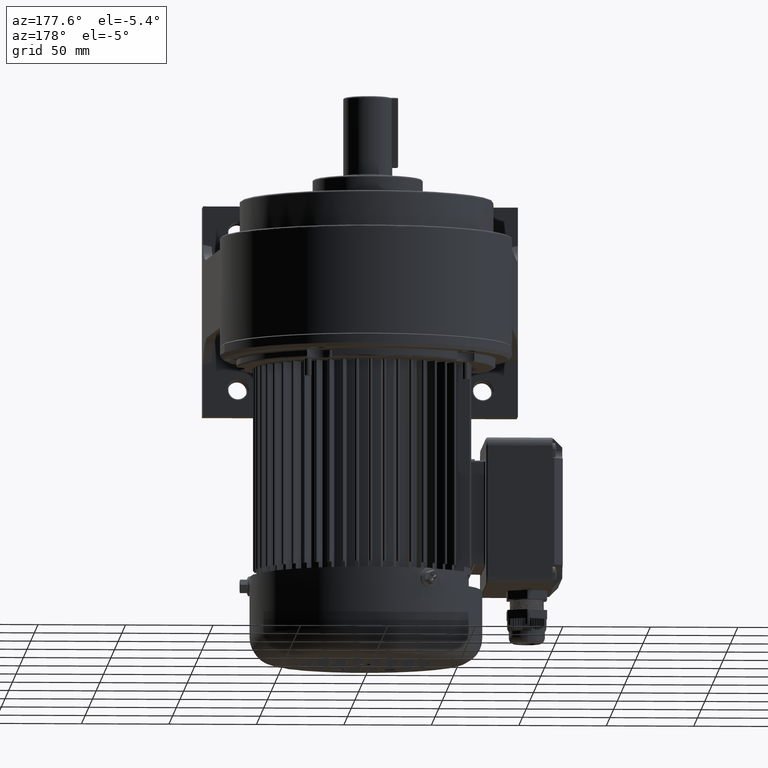
[diagram: clean part render]
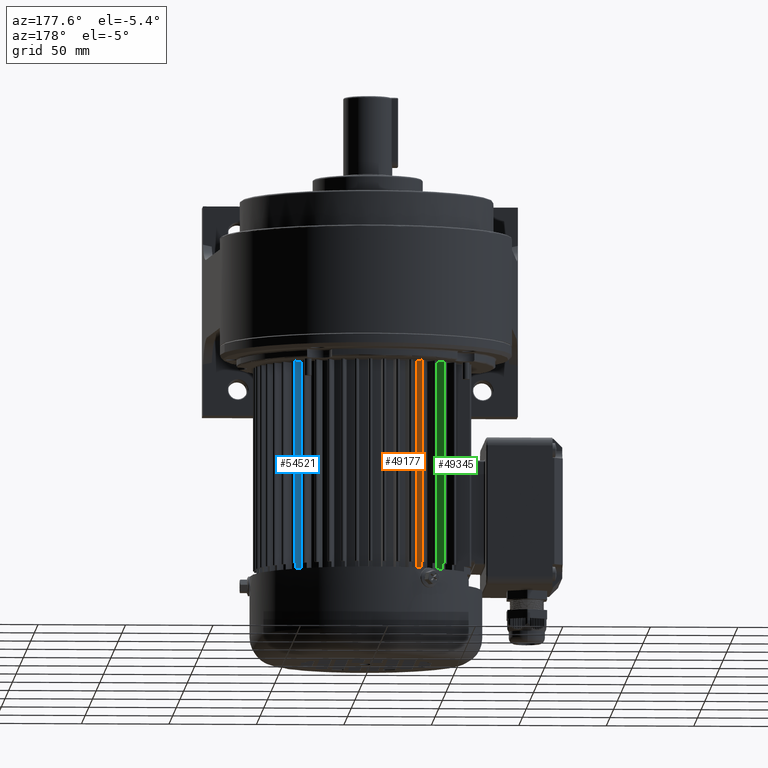
[diagram: same view with three faces highlighted in distinct colors, each labeled with its STEP entity id]
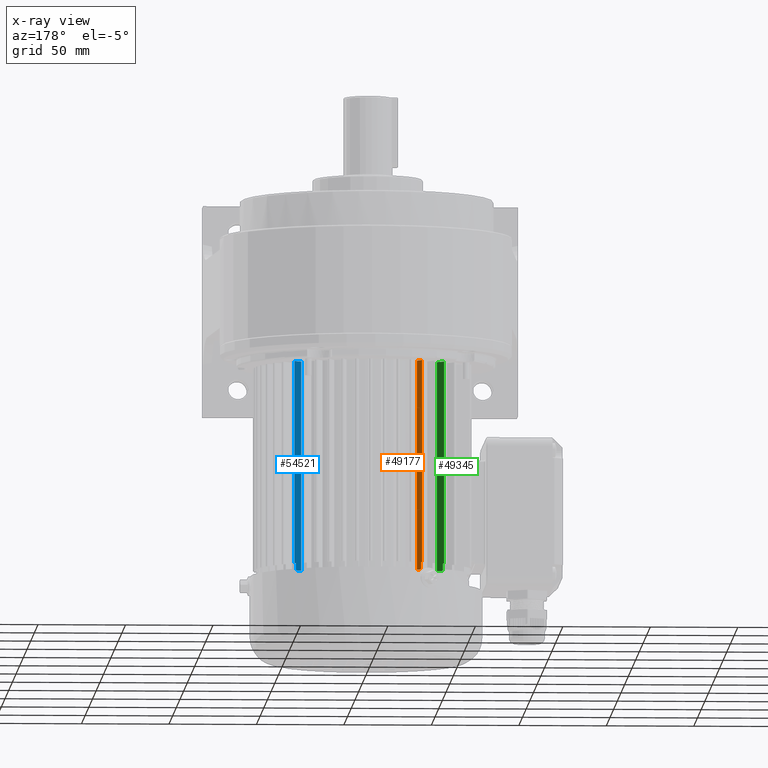
[diagram: x-ray of the same camera — body ghosted, the three highlighted faces saturated]
A machine part, auxiliary view with three faces highlighted in distinct colors.
The next image is the same camera in x-ray (body ghosted, the three faces saturated) — at least one of them is partly hidden behind the body in this view.
Their STEP definitions:

[orange] entity #49177 — the highlighted planar face has unit normal (-0.8763, -0.4818, -0).
#11721 = CARTESIAN_POINT ( 'NONE',  ( -26.91670536020936300, 120.0000000000000000, -51.03705489692441000 ) ) ;
#11722 = LINE ( 'NONE', #11721, #11777 ) ;
#11745 = LINE ( 'NONE', #11808, #11806 ) ;
#11748 = DIRECTION ( 'NONE',  ( -0.4817536741017096600, 0.0000000000000000000, -0.8763066800438666900 ) ) ;
#11749 = VECTOR ( 'NONE', #11748, 1000.000000000000000 ) ;
#11750 = CARTESIAN_POINT ( 'NONE',  ( -26.91670536020936300, 4.000000000000003600, -51.03705489692441000 ) ) ;
#11751 = AXIS2_PLACEMENT_3D ( 'NONE', #11767, #11810, #11809 ) ;
#11754 = PLANE ( 'NONE',  #11751 ) ;
#11755 = FACE_OUTER_BOUND ( 'NONE', #49133, .T. ) ;
#11763 = DIRECTION ( 'NONE',  ( -0.0000000000000000000, 1.000000000000000000, -0.0000000000000000000 ) ) ;
#11764 = VECTOR ( 'NONE', #11763, 1000.000000000000000 ) ;
#11765 = CARTESIAN_POINT ( 'NONE',  ( -29.22944367523074000, 4.000000000000000000, -55.24391027467654400 ) ) ;
#11767 = CARTESIAN_POINT ( 'NONE',  ( -26.91670536020936300, 120.0000000000000000, -51.03705489692441000 ) ) ;
#11768 = CARTESIAN_POINT ( 'NONE',  ( -29.22944367523074800, 4.000000000000000000, -55.24391027467655800 ) ) ;
#11770 = LINE ( 'NONE', #11765, #11764 ) ;
#11771 = LINE ( 'NONE', #11750, #11749 ) ;
#11775 = CARTESIAN_POINT ( 'NONE',  ( -29.71505162541472000, 4.000000000000003600, -56.12722785688723100 ) ) ;
#11776 = DIRECTION ( 'NONE',  ( -0.0000000000000000000, -1.000000000000000000, -0.0000000000000000000 ) ) ;
#11777 = VECTOR ( 'NONE', #11776, 1000.000000000000000 ) ;
#11806 = VECTOR ( 'NONE', #11807, 1000.000000000000000 ) ;
#11807 = DIRECTION ( 'NONE',  ( -0.0000000000000000000, -1.000000000000000000, -0.0000000000000000000 ) ) ;
#11808 = CARTESIAN_POINT ( 'NONE',  ( -29.71505162541472000, 120.0000000000000000, -56.12722785688723100 ) ) ;
#11809 = DIRECTION ( 'NONE',  ( 0.4817536741017096600, 0.0000000000000000000, 0.8763066800438666900 ) ) ;
#11810 = DIRECTION ( 'NONE',  ( -0.8763066800438666900, 0.0000000000000000000, 0.4817536741017096600 ) ) ;
#29536 = CARTESIAN_POINT ( 'NONE',  ( -29.71505162541472000, 120.0000000000000000, -56.12722785688723100 ) ) ;
#29629 = DIRECTION ( 'NONE',  ( -0.4817536741017096600, 0.0000000000000000000, -0.8763066800438666900 ) ) ;
#29630 = VECTOR ( 'NONE', #29629, 1000.000000000000000 ) ;
#29631 = CARTESIAN_POINT ( 'NONE',  ( -26.91670536020936300, 120.0000000000000000, -51.03705489692441000 ) ) ;
#29632 = LINE ( 'NONE', #29631, #29630 ) ;
#29661 = CARTESIAN_POINT ( 'NONE',  ( -26.91670536020936300, 120.0000000000000000, -51.03705489692441000 ) ) ;
#29924 = DIRECTION ( 'NONE',  ( -0.4817536741017096600, 0.0000000000000000000, -0.8763066800438666900 ) ) ;
#29925 = VECTOR ( 'NONE', #29924, 1000.000000000000000 ) ;
#29926 = CARTESIAN_POINT ( 'NONE',  ( -26.91670536020936300, 0.0000000000000000000, -51.03705489692441000 ) ) ;
#29929 = LINE ( 'NONE', #29926, #29925 ) ;
#29950 = CARTESIAN_POINT ( 'NONE',  ( -26.91670536020936300, 0.0000000000000000000, -51.03705489692441000 ) ) ;
#29964 = CARTESIAN_POINT ( 'NONE',  ( -29.22944367523074800, 0.0000000000000000000, -55.24391027467655800 ) ) ;
#34244 = VERTEX_POINT ( 'NONE', #29536 ) ;
#34310 = EDGE_CURVE ( 'NONE', #34324, #34244, #29632, .T. ) ;
#34324 = VERTEX_POINT ( 'NONE', #29661 ) ;
#34474 = EDGE_CURVE ( 'NONE', #34497, #34490, #29929, .T. ) ;
#34490 = VERTEX_POINT ( 'NONE', #29964 ) ;
#34497 = VERTEX_POINT ( 'NONE', #29950 ) ;
#49133 = EDGE_LOOP ( 'NONE', ( #49179, #49178, #49181, #49150, #49182, #49180 ) ) ;
#49150 = ORIENTED_EDGE ( 'NONE', *, *, #34310, .F. ) ;
#49160 = EDGE_CURVE ( 'NONE', #34324, #34497, #11722, .T. ) ;
#49163 = VERTEX_POINT ( 'NONE', #11775 ) ;
#49164 = EDGE_CURVE ( 'NONE', #34490, #49166, #11770, .T. ) ;
#49166 = VERTEX_POINT ( 'NONE', #11768 ) ;
#49175 = EDGE_CURVE ( 'NONE', #49166, #49163, #11771, .T. ) ;
#49177 = ADVANCED_FACE ( 'NONE', ( #11755 ), #11754, .F. ) ;
#49178 = ORIENTED_EDGE ( 'NONE', *, *, #49175, .T. ) ;
#49179 = ORIENTED_EDGE ( 'NONE', *, *, #49164, .T. ) ;
#49180 = ORIENTED_EDGE ( 'NONE', *, *, #34474, .T. ) ;
#49181 = ORIENTED_EDGE ( 'NONE', *, *, #49183, .F. ) ;
#49182 = ORIENTED_EDGE ( 'NONE', *, *, #49160, .T. ) ;
#49183 = EDGE_CURVE ( 'NONE', #34244, #49163, #11745, .T. ) ;

[blue] entity #54521 — the highlighted planar face has unit normal (0.729, -0.6845, -0).
#12537 = CARTESIAN_POINT ( 'NONE',  ( 42.04974876574094400, 4.000000000000000000, -46.23925419746807100 ) ) ;
#12672 = CARTESIAN_POINT ( 'NONE',  ( 38.76346698850220200, 120.0000000000000000, -42.73971954787841600 ) ) ;
#12703 = DIRECTION ( 'NONE',  ( 0.0000000000000000000, -1.000000000000000000, 0.0000000000000000000 ) ) ;
#12704 = VECTOR ( 'NONE', #12703, 1000.000000000000000 ) ;
#12705 = CARTESIAN_POINT ( 'NONE',  ( 42.04974876574093700, 4.000000000000000000, -46.23925419746806400 ) ) ;
#12707 = LINE ( 'NONE', #12705, #12704 ) ;
#12709 = DIRECTION ( 'NONE',  ( -0.0000000000000000000, -1.000000000000000000, -0.0000000000000000000 ) ) ;
#12710 = VECTOR ( 'NONE', #12709, 1000.000000000000000 ) ;
#12716 = LINE ( 'NONE', #12672, #12710 ) ;
#12738 = DIRECTION ( 'NONE',  ( -0.6845471059286835100, 0.0000000000000000000, 0.7289686274214164400 ) ) ;
#12739 = VECTOR ( 'NONE', #12738, 1000.000000000000000 ) ;
#12758 = CARTESIAN_POINT ( 'NONE',  ( 38.76346698850219500, 4.000000000000003600, -42.73971954787841600 ) ) ;
#12759 = LINE ( 'NONE', #12758, #12739 ) ;
#12777 = DIRECTION ( 'NONE',  ( 0.6845471059286835100, 0.0000000000000000000, -0.7289686274214164400 ) ) ;
#12778 = DIRECTION ( 'NONE',  ( 0.7289686274214164400, -0.0000000000000000000, 0.6845471059286835100 ) ) ;
#12783 = AXIS2_PLACEMENT_3D ( 'NONE', #12790, #12778, #12777 ) ;
#12790 = CARTESIAN_POINT ( 'NONE',  ( 38.76346698850219500, 120.0000000000000000, -42.73971954787841600 ) ) ;
#12791 = FACE_OUTER_BOUND ( 'NONE', #54386, .T. ) ;
#12792 = PLANE ( 'NONE',  #12783 ) ;
#18188 = VERTEX_POINT ( 'NONE', #25735 ) ;
#18190 = VERTEX_POINT ( 'NONE', #25785 ) ;
#18238 = EDGE_CURVE ( 'NONE', #18188, #18190, #25884, .T. ) ;
#18660 = VERTEX_POINT ( 'NONE', #26664 ) ;
#18680 = EDGE_CURVE ( 'NONE', #18188, #18660, #26685, .T. ) ;
#25735 = CARTESIAN_POINT ( 'NONE',  ( 42.73977259905004200, 120.0000000000000000, -46.97405494718857000 ) ) ;
#25785 = CARTESIAN_POINT ( 'NONE',  ( 42.73977259905004200, 4.000000000000003600, -46.97405494718857000 ) ) ;
#25881 = DIRECTION ( 'NONE',  ( -0.0000000000000000000, -1.000000000000000000, -0.0000000000000000000 ) ) ;
#25882 = VECTOR ( 'NONE', #25881, 1000.000000000000000 ) ;
#25883 = CARTESIAN_POINT ( 'NONE',  ( 42.73977259905004200, 120.0000000000000000, -46.97405494718857000 ) ) ;
#25884 = LINE ( 'NONE', #25883, #25882 ) ;
#26664 = CARTESIAN_POINT ( 'NONE',  ( 38.76346698850220200, 120.0000000000000000, -42.73971954787841600 ) ) ;
#26678 = DIRECTION ( 'NONE',  ( -0.6845471059286835100, -0.0000000000000000000, 0.7289686274214164400 ) ) ;
#26679 = VECTOR ( 'NONE', #26678, 1000.000000000000000 ) ;
#26685 = LINE ( 'NONE', #26687, #26679 ) ;
#26687 = CARTESIAN_POINT ( 'NONE',  ( 38.76346698850219500, 120.0000000000000000, -42.73971954787841600 ) ) ;
#29127 = CARTESIAN_POINT ( 'NONE',  ( 38.76346698850220200, 0.0000000000000000000, -42.73971954787841600 ) ) ;
#29143 = DIRECTION ( 'NONE',  ( -0.6845471059286835100, -0.0000000000000000000, 0.7289686274214164400 ) ) ;
#29144 = VECTOR ( 'NONE', #29143, 1000.000000000000000 ) ;
#29145 = CARTESIAN_POINT ( 'NONE',  ( 38.76346698850219500, 0.0000000000000000000, -42.73971954787841600 ) ) ;
#29147 = LINE ( 'NONE', #29145, #29144 ) ;
#29183 = CARTESIAN_POINT ( 'NONE',  ( 42.04974876574093700, 0.0000000000000000000, -46.23925419746806400 ) ) ;
#34047 = VERTEX_POINT ( 'NONE', #29127 ) ;
#34060 = EDGE_CURVE ( 'NONE', #34074, #34047, #29147, .T. ) ;
#34074 = VERTEX_POINT ( 'NONE', #29183 ) ;
#52112 = VERTEX_POINT ( 'NONE', #12537 ) ;
#52295 = ORIENTED_EDGE ( 'NONE', *, *, #18238, .T. ) ;
#53936 = ORIENTED_EDGE ( 'NONE', *, *, #54254, .T. ) ;
#54251 = EDGE_CURVE ( 'NONE', #18660, #34047, #12716, .T. ) ;
#54254 = EDGE_CURVE ( 'NONE', #52112, #34074, #12707, .T. ) ;
#54374 = EDGE_CURVE ( 'NONE', #18190, #52112, #12759, .T. ) ;
#54386 = EDGE_LOOP ( 'NONE', ( #52295, #54491, #53936, #55859, #54700, #55911 ) ) ;
#54491 = ORIENTED_EDGE ( 'NONE', *, *, #54374, .T. ) ;
#54521 = ADVANCED_FACE ( 'NONE', ( #12791 ), #12792, .F. ) ;
#54700 = ORIENTED_EDGE ( 'NONE', *, *, #54251, .F. ) ;
#55859 = ORIENTED_EDGE ( 'NONE', *, *, #34060, .T. ) ;
#55911 = ORIENTED_EDGE ( 'NONE', *, *, #18680, .F. ) ;

[green] entity #49345 — the highlighted planar face has unit normal (-0.729, -0.6845, -0).
#11996 = DIRECTION ( 'NONE',  ( -0.0000000000000000000, -1.000000000000000000, -0.0000000000000000000 ) ) ;
#11997 = VECTOR ( 'NONE', #11996, 1000.000000000000000 ) ;
#11999 = CARTESIAN_POINT ( 'NONE',  ( -42.73977259905009900, 4.000000000000003600, -46.97405494718852000 ) ) ;
#12002 = LINE ( 'NONE', #12009, #11997 ) ;
#12003 = AXIS2_PLACEMENT_3D ( 'NONE', #12054, #12012, #12053 ) ;
#12009 = CARTESIAN_POINT ( 'NONE',  ( -38.76346698850225200, 120.0000000000000000, -42.73971954787837300 ) ) ;
#12012 = DIRECTION ( 'NONE',  ( -0.7289686274214164400, 0.0000000000000000000, 0.6845471059286835100 ) ) ;
#12020 = DIRECTION ( 'NONE',  ( -0.0000000000000000000, 1.000000000000000000, -0.0000000000000000000 ) ) ;
#12021 = VECTOR ( 'NONE', #12020, 1000.000000000000000 ) ;
#12022 = CARTESIAN_POINT ( 'NONE',  ( -42.04974876574098600, 4.000000000000000000, -46.23925419746801400 ) ) ;
#12023 = LINE ( 'NONE', #12022, #12021 ) ;
#12024 = CARTESIAN_POINT ( 'NONE',  ( -42.04974876574099300, 4.000000000000000000, -46.23925419746802100 ) ) ;
#12044 = DIRECTION ( 'NONE',  ( -0.6845471059286835100, 0.0000000000000000000, -0.7289686274214164400 ) ) ;
#12045 = VECTOR ( 'NONE', #12044, 1000.000000000000000 ) ;
#12046 = CARTESIAN_POINT ( 'NONE',  ( -38.76346698850225200, 4.000000000000003600, -42.73971954787837300 ) ) ;
#12047 = LINE ( 'NONE', #12046, #12045 ) ;
#12048 = DIRECTION ( 'NONE',  ( -0.0000000000000000000, -1.000000000000000000, -0.0000000000000000000 ) ) ;
#12049 = VECTOR ( 'NONE', #12048, 1000.000000000000000 ) ;
#12050 = CARTESIAN_POINT ( 'NONE',  ( -42.73977259905009900, 120.0000000000000000, -46.97405494718852000 ) ) ;
#12053 = DIRECTION ( 'NONE',  ( 0.6845471059286835100, 0.0000000000000000000, 0.7289686274214164400 ) ) ;
#12054 = CARTESIAN_POINT ( 'NONE',  ( -38.76346698850225200, 120.0000000000000000, -42.73971954787837300 ) ) ;
#12055 = FACE_OUTER_BOUND ( 'NONE', #49333, .T. ) ;
#12059 = LINE ( 'NONE', #12050, #12049 ) ;
#12060 = PLANE ( 'NONE',  #12003 ) ;
#29325 = CARTESIAN_POINT ( 'NONE',  ( -42.73977259905009900, 120.0000000000000000, -46.97405494718852000 ) ) ;
#29338 = CARTESIAN_POINT ( 'NONE',  ( -38.76346698850225200, 120.0000000000000000, -42.73971954787837300 ) ) ;
#29591 = DIRECTION ( 'NONE',  ( -0.6845471059286835100, 0.0000000000000000000, -0.7289686274214164400 ) ) ;
#29592 = VECTOR ( 'NONE', #29591, 1000.000000000000000 ) ;
#29593 = CARTESIAN_POINT ( 'NONE',  ( -38.76346698850225200, 120.0000000000000000, -42.73971954787837300 ) ) ;
#29594 = LINE ( 'NONE', #29593, #29592 ) ;
#29862 = CARTESIAN_POINT ( 'NONE',  ( -38.76346698850225200, 0.0000000000000000000, -42.73971954787837300 ) ) ;
#29946 = LINE ( 'NONE', #30001, #30000 ) ;
#29976 = CARTESIAN_POINT ( 'NONE',  ( -42.04974876574099300, 0.0000000000000000000, -46.23925419746802100 ) ) ;
#29999 = DIRECTION ( 'NONE',  ( -0.6845471059286835100, 0.0000000000000000000, -0.7289686274214164400 ) ) ;
#30000 = VECTOR ( 'NONE', #29999, 1000.000000000000000 ) ;
#30001 = CARTESIAN_POINT ( 'NONE',  ( -38.76346698850225200, 0.0000000000000000000, -42.73971954787837300 ) ) ;
#34291 = EDGE_CURVE ( 'NONE', #34304, #34306, #29594, .T. ) ;
#34304 = VERTEX_POINT ( 'NONE', #29338 ) ;
#34306 = VERTEX_POINT ( 'NONE', #29325 ) ;
#34441 = VERTEX_POINT ( 'NONE', #29862 ) ;
#34502 = EDGE_CURVE ( 'NONE', #34441, #34517, #29946, .T. ) ;
#34517 = VERTEX_POINT ( 'NONE', #29976 ) ;
#49313 = EDGE_CURVE ( 'NONE', #34517, #49323, #12023, .T. ) ;
#49320 = ORIENTED_EDGE ( 'NONE', *, *, #49313, .T. ) ;
#49322 = ORIENTED_EDGE ( 'NONE', *, *, #34291, .F. ) ;
#49323 = VERTEX_POINT ( 'NONE', #12024 ) ;
#49333 = EDGE_LOOP ( 'NONE', ( #49320, #49356, #49355, #49322, #49358, #49342 ) ) ;
#49340 = EDGE_CURVE ( 'NONE', #34304, #34441, #12002, .T. ) ;
#49342 = ORIENTED_EDGE ( 'NONE', *, *, #34502, .T. ) ;
#49343 = VERTEX_POINT ( 'NONE', #11999 ) ;
#49345 = ADVANCED_FACE ( 'NONE', ( #12055 ), #12060, .F. ) ;
#49348 = EDGE_CURVE ( 'NONE', #34306, #49343, #12059, .T. ) ;
#49350 = EDGE_CURVE ( 'NONE', #49323, #49343, #12047, .T. ) ;
#49355 = ORIENTED_EDGE ( 'NONE', *, *, #49348, .F. ) ;
#49356 = ORIENTED_EDGE ( 'NONE', *, *, #49350, .T. ) ;
#49358 = ORIENTED_EDGE ( 'NONE', *, *, #49340, .T. ) ;